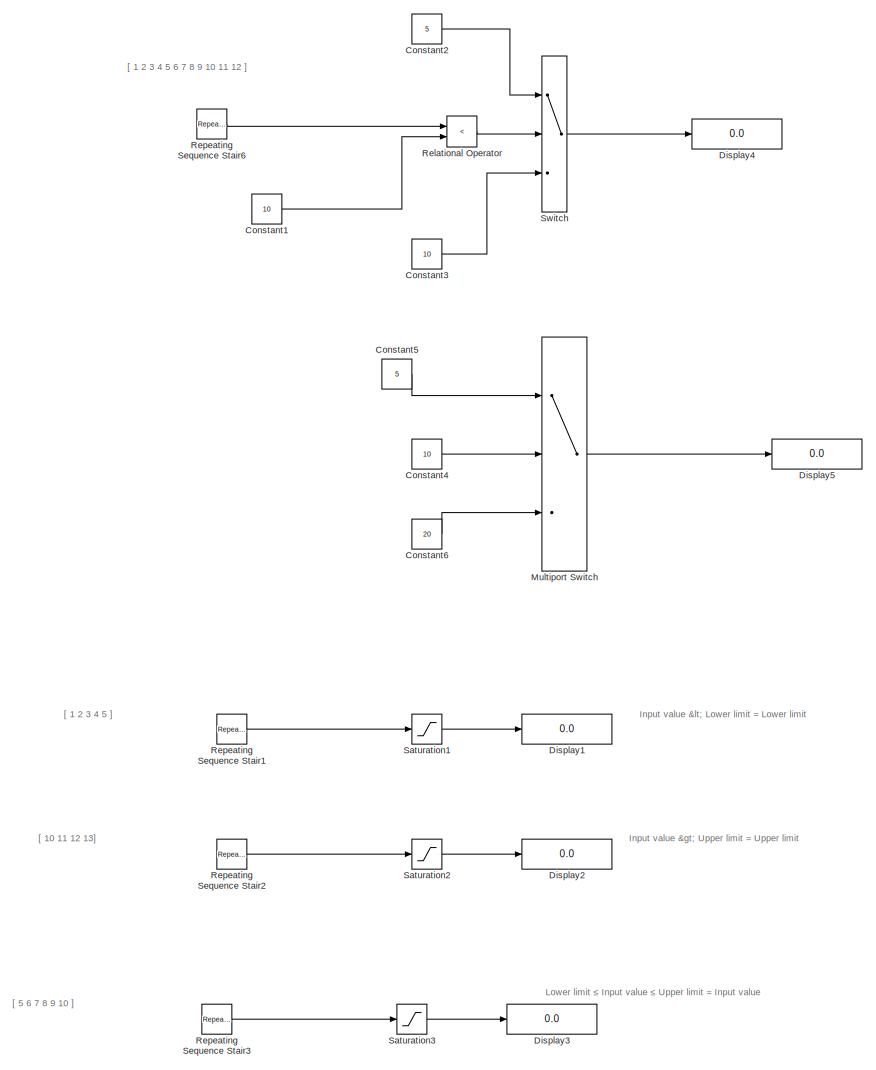
[diagram: root canvas - part 1/2, left side, full height]
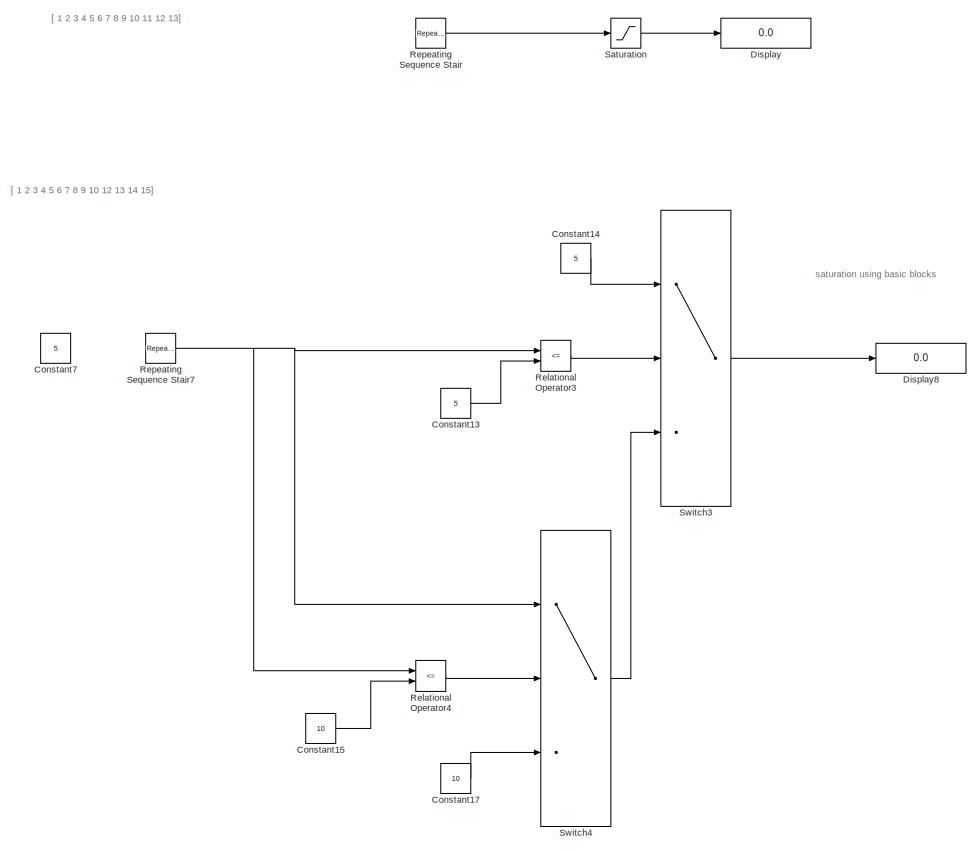
[diagram: root canvas - part 2/2, right side, full height]
MODEL slx_841dcb8ba31b
KIND model
CONFIG AbsTol = auto
CONFIG EnableMultiTasking = off
CONFIG FixedStep = auto
CONFIG MaxStep = auto
CONFIG MinStep = auto
CONFIG RelTol = 1e-3
CONFIG SampleTimeConstraint = Unconstrained
CONFIG Solver = VariableStepAuto
CONFIG SolverName = VariableStepAuto
CONFIG StartTime = 0.0
CONFIG StopTime = 10.0
BLOCK [Constant] Constant1
  Commented = on
  Value = 10
BLOCK [Constant] Constant13
  Value = 5
BLOCK [Constant] Constant14
  Value = 5
BLOCK [Constant] Constant15
  Value = 10
BLOCK [Constant] Constant17
  Value = 10
BLOCK [Constant] Constant2
  Commented = on
  Value = 5
BLOCK [Constant] Constant3
  Commented = on
  Value = 10
BLOCK [Constant] Constant4
  Commented = on
  Value = 10
BLOCK [Constant] Constant5
  Commented = on
  Value = 5
BLOCK [Constant] Constant6
  Commented = on
  Value = 20
BLOCK [Constant] Constant7
  Value = 5
BLOCK [Display] Display
  Decimation = 1
  Ports = [1]
BLOCK [Display] Display1
  Commented = on
  Decimation = 1
  Ports = [1]
BLOCK [Display] Display2
  Commented = on
  Decimation = 1
  Ports = [1]
BLOCK [Display] Display3
  Commented = on
  Decimation = 1
  Ports = [1]
BLOCK [Display] Display4
  Commented = on
  Decimation = 1
  Ports = [1]
BLOCK [Display] Display5
  Commented = on
  Decimation = 1
  Ports = [1]
BLOCK [Display] Display8
  Decimation = 1
  Ports = [1]
BLOCK [MultiPortSwitch] Multiport Switch
  Commented = on
  DataPortIndices = {10,20,}
  DataPortOrder = Specify indices
  InputSameDT = off
  Ports = [3, 1]
  SaturateOnIntegerOverflow = off
BLOCK [RelationalOperator] Relational Operator
  Commented = on
  InputSameDT = off
  Operator = <
  OutDataTypeStr = boolean
  Ports = [2, 1]
  RndMeth = Simplest
BLOCK [RelationalOperator] Relational Operator3
  InputSameDT = off
  Operator = <=
  OutDataTypeStr = boolean
  Ports = [2, 1]
  RndMeth = Simplest
BLOCK [RelationalOperator] Relational Operator4
  InputSameDT = off
  Operator = <=
  OutDataTypeStr = boolean
  Ports = [2, 1]
  RndMeth = Simplest
BLOCK [Reference] Repeating Sequence Stair  REF=simulink/Sources/Repeating
Sequence
Stair
  Ports = [0, 1]
  SourceBlock = simulink/Sources/Repeating\nSequence\nStair
  SourceProductBaseCode = SL
  SourceType = Repeating Sequence Stair
BLOCK [Reference] Repeating Sequence Stair1  REF=simulink/Sources/Repeating
Sequence
Stair
  Commented = on
  Ports = [0, 1]
  SourceBlock = simulink/Sources/Repeating\nSequence\nStair
  SourceProductBaseCode = SL
  SourceType = Repeating Sequence Stair
BLOCK [Reference] Repeating Sequence Stair2  REF=simulink/Sources/Repeating
Sequence
Stair
  Commented = on
  Ports = [0, 1]
  SourceBlock = simulink/Sources/Repeating\nSequence\nStair
  SourceProductBaseCode = SL
  SourceType = Repeating Sequence Stair
BLOCK [Reference] Repeating Sequence Stair3  REF=simulink/Sources/Repeating
Sequence
Stair
  Commented = on
  Ports = [0, 1]
  SourceBlock = simulink/Sources/Repeating\nSequence\nStair
  SourceProductBaseCode = SL
  SourceType = Repeating Sequence Stair
BLOCK [Reference] Repeating Sequence Stair6  REF=simulink/Sources/Repeating
Sequence
Stair
  Commented = on
  Ports = [0, 1]
  SourceBlock = simulink/Sources/Repeating\nSequence\nStair
  SourceProductBaseCode = SL
  SourceType = Repeating Sequence Stair
BLOCK [Reference] Repeating Sequence Stair7  REF=simulink/Sources/Repeating
Sequence
Stair
  Ports = [0, 1]
  SourceBlock = simulink/Sources/Repeating\nSequence\nStair
  SourceProductBaseCode = SL
  SourceType = Repeating Sequence Stair
BLOCK [Saturate] Saturation
  LowerLimit = 5
  UpperLimit = 10
BLOCK [Saturate] Saturation1
  Commented = on
  LowerLimit = 5
  UpperLimit = 10
BLOCK [Saturate] Saturation2
  Commented = on
  LowerLimit = 5
  UpperLimit = 10
BLOCK [Saturate] Saturation3
  Commented = on
  LowerLimit = 5
  UpperLimit = 10
BLOCK [Switch] Switch
  Commented = on
  Criteria = u2 > Threshold
  InputSameDT = off
  SaturateOnIntegerOverflow = off
BLOCK [Switch] Switch3
  Criteria = u2 > Threshold
  InputSameDT = off
  SaturateOnIntegerOverflow = off
BLOCK [Switch] Switch4
  Criteria = u2 > Threshold
  InputSameDT = off
  SaturateOnIntegerOverflow = off
ANNOTATION (root): Input value > Upper limit = Upper limit
ANNOTATION (root): Input value < Lower limit = Lower limit
ANNOTATION (root): Lower limit ≤ Input value ≤ Upper limit = Input value
ANNOTATION (root): [ 5 6 7 8 9 10 ]
ANNOTATION (root): [ 1 2 3 4 5 6 7 8 9 10 11 12 13]
ANNOTATION (root): [ 1 2 3 4 5 6 7 8 9 10 12 13 14 15]
ANNOTATION (root): [ 1 2 3 4 5 ]
ANNOTATION (root): [ 10 11 12 13]
ANNOTATION (root): saturation using basic blocks
ANNOTATION (root): [ 1 2 3 4 5 6 7 8 9 10 11 12 ]
LINE Constant13:1 -> Relational Operator3:2
LINE Constant14:1 -> Switch3:1
LINE Constant15:1 -> Relational Operator4:2
LINE Constant17:1 -> Switch4:3
LINE Constant1:1 -> Relational Operator:2
LINE Constant2:1 -> Switch:1
LINE Constant3:1 -> Switch:3
LINE Constant4:1 -> Multiport Switch:2
LINE Constant5:1 -> Multiport Switch:1
LINE Constant6:1 -> Multiport Switch:3
LINE Multiport Switch:1 -> Display5:1
LINE Relational Operator3:1 -> Switch3:2
LINE Relational Operator4:1 -> Switch4:2
LINE Relational Operator:1 -> Switch:2
LINE Repeating Sequence Stair1:1 -> Saturation1:1
LINE Repeating Sequence Stair2:1 -> Saturation2:1
LINE Repeating Sequence Stair3:1 -> Saturation3:1
LINE Repeating Sequence Stair6:1 -> Relational Operator:1
NET Repeating Sequence Stair7:1 -> Relational Operator3:1, Relational Operator4:1, Switch4:1
LINE Repeating Sequence Stair:1 -> Saturation:1
LINE Saturation1:1 -> Display1:1
LINE Saturation2:1 -> Display2:1
LINE Saturation3:1 -> Display3:1
LINE Saturation:1 -> Display:1
LINE Switch3:1 -> Display8:1
LINE Switch4:1 -> Switch3:3
LINE Switch:1 -> Display4:1
note: NET lines group one-source signal fan-out (src -> all destinations, sorted); 1:1 wires keep LINE
